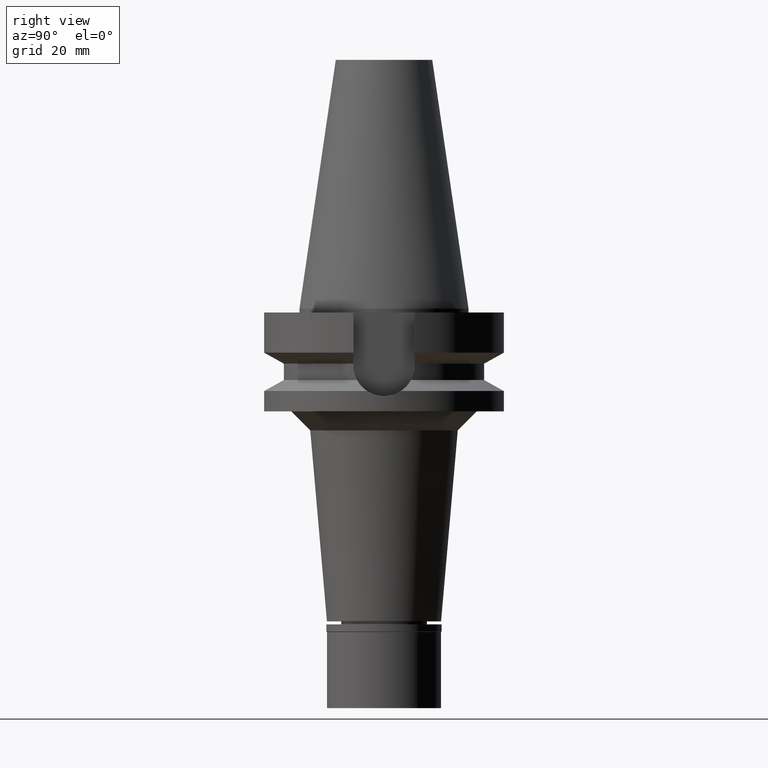
[diagram: clean part render]
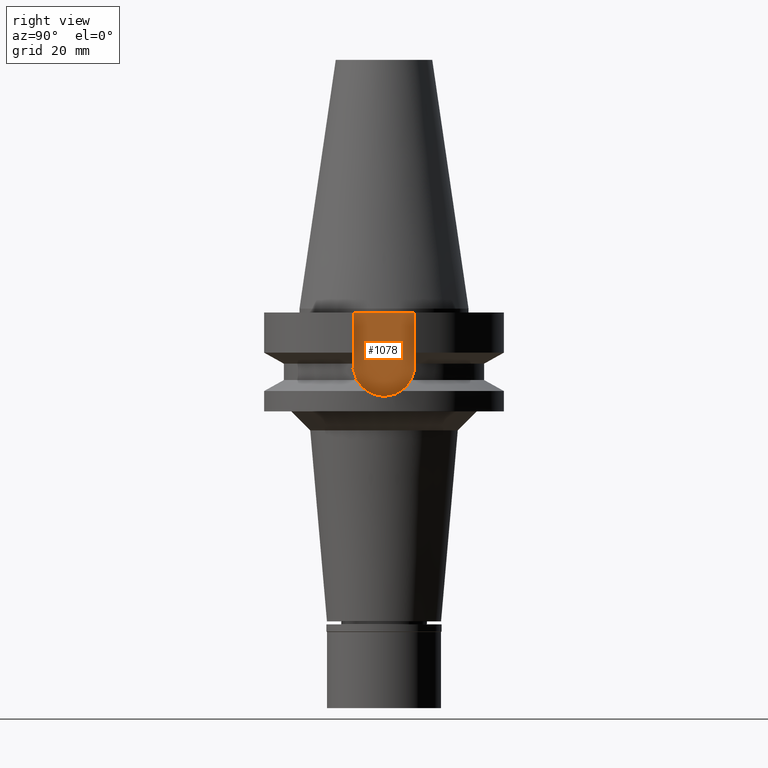
[diagram: same view with one face highlighted and labeled with its STEP entity id]
A machine part, right view. The second image highlights one B-rep face of the part: STEP entity #1078.
In plain terms, the highlighted planar face has unit normal (1, 0, 0).
Its self-contained STEP definition (entity closure, byte-faithful):
#199 = EDGE_CURVE ( 'NONE', #240, #906, #1924, .T. ) ;
#240 = VERTEX_POINT ( 'NONE', #1521 ) ;
#431 = EDGE_CURVE ( 'NONE', #1640, #854, #2096, .T. ) ;
#548 = DIRECTION ( 'NONE',  ( 0.0000000000000000000, 1.000000000000000000, 0.0000000000000000000 ) ) ;
#551 = ORIENTED_EDGE ( 'NONE', *, *, #431, .T. ) ;
#692 = CARTESIAN_POINT ( 'NONE',  ( 22.50000000000000000, 8.050000000000000711, -1.000000000000000000 ) ) ;
#705 = LINE ( 'NONE', #1906, #898 ) ;
#707 = AXIS2_PLACEMENT_3D ( 'NONE', #2722, #803, #2246 ) ;
#713 = ORIENTED_EDGE ( 'NONE', *, *, #925, .F. ) ;
#756 = CARTESIAN_POINT ( 'NONE',  ( 22.50000000000000000, 8.050000000000000711, -1.000000000000000000 ) ) ;
#779 = PLANE ( 'NONE',  #1005 ) ;
#803 = DIRECTION ( 'NONE',  ( -1.000000000000000000, 0.0000000000000000000, 0.0000000000000000000 ) ) ;
#854 = VERTEX_POINT ( 'NONE', #1134 ) ;
#898 = VECTOR ( 'NONE', #3134, 1000.000000000000000 ) ;
#906 = VERTEX_POINT ( 'NONE', #2590 ) ;
#925 = EDGE_CURVE ( 'NONE', #906, #854, #1151, .T. ) ;
#1005 = AXIS2_PLACEMENT_3D ( 'NONE', #2965, #2191, #548 ) ;
#1078 = ADVANCED_FACE ( 'NONE', ( #2465 ), #779, .T. ) ;
#1134 = CARTESIAN_POINT ( 'NONE',  ( 22.50000000000000000, -8.050000000000000711, -1.000000000000000000 ) ) ;
#1151 = LINE ( 'NONE', #2121, #1163 ) ;
#1163 = VECTOR ( 'NONE', #3083, 1000.000000000000000 ) ;
#1521 = CARTESIAN_POINT ( 'NONE',  ( 22.50000000000000000, 8.050000000000000711, -14.94999999999999929 ) ) ;
#1640 = VERTEX_POINT ( 'NONE', #756 ) ;
#1676 = VECTOR ( 'NONE', #2595, 1000.000000000000000 ) ;
#1906 = CARTESIAN_POINT ( 'NONE',  ( 22.50000000000000000, 8.050000000000000711, -1.000000000000000000 ) ) ;
#1924 = CIRCLE ( 'NONE', #707, 8.050000000000000711 ) ;
#1994 = EDGE_CURVE ( 'NONE', #1640, #240, #705, .T. ) ;
#2096 = LINE ( 'NONE', #692, #1676 ) ;
#2121 = CARTESIAN_POINT ( 'NONE',  ( 22.50000000000000000, -8.050000000000000711, -14.94999999999999929 ) ) ;
#2191 = DIRECTION ( 'NONE',  ( 1.000000000000000000, 0.0000000000000000000, 0.0000000000000000000 ) ) ;
#2246 = DIRECTION ( 'NONE',  ( 0.0000000000000000000, 0.0000000000000000000, -1.000000000000000000 ) ) ;
#2289 = EDGE_LOOP ( 'NONE', ( #713, #2499, #2809, #551 ) ) ;
#2465 = FACE_OUTER_BOUND ( 'NONE', #2289, .T. ) ;
#2499 = ORIENTED_EDGE ( 'NONE', *, *, #199, .F. ) ;
#2590 = CARTESIAN_POINT ( 'NONE',  ( 22.50000000000000000, -8.050000000000000711, -14.94999999999999929 ) ) ;
#2595 = DIRECTION ( 'NONE',  ( 0.0000000000000000000, -1.000000000000000000, 0.0000000000000000000 ) ) ;
#2722 = CARTESIAN_POINT ( 'NONE',  ( 22.50000000000000000, 0.0000000000000000000, -14.94999999999999929 ) ) ;
#2809 = ORIENTED_EDGE ( 'NONE', *, *, #1994, .F. ) ;
#2965 = CARTESIAN_POINT ( 'NONE',  ( 22.50000000000000000, 0.0000000000000000000, 0.0000000000000000000 ) ) ;
#3083 = DIRECTION ( 'NONE',  ( 0.0000000000000000000, 0.0000000000000000000, 1.000000000000000000 ) ) ;
#3134 = DIRECTION ( 'NONE',  ( 0.0000000000000000000, 0.0000000000000000000, -1.000000000000000000 ) ) ;